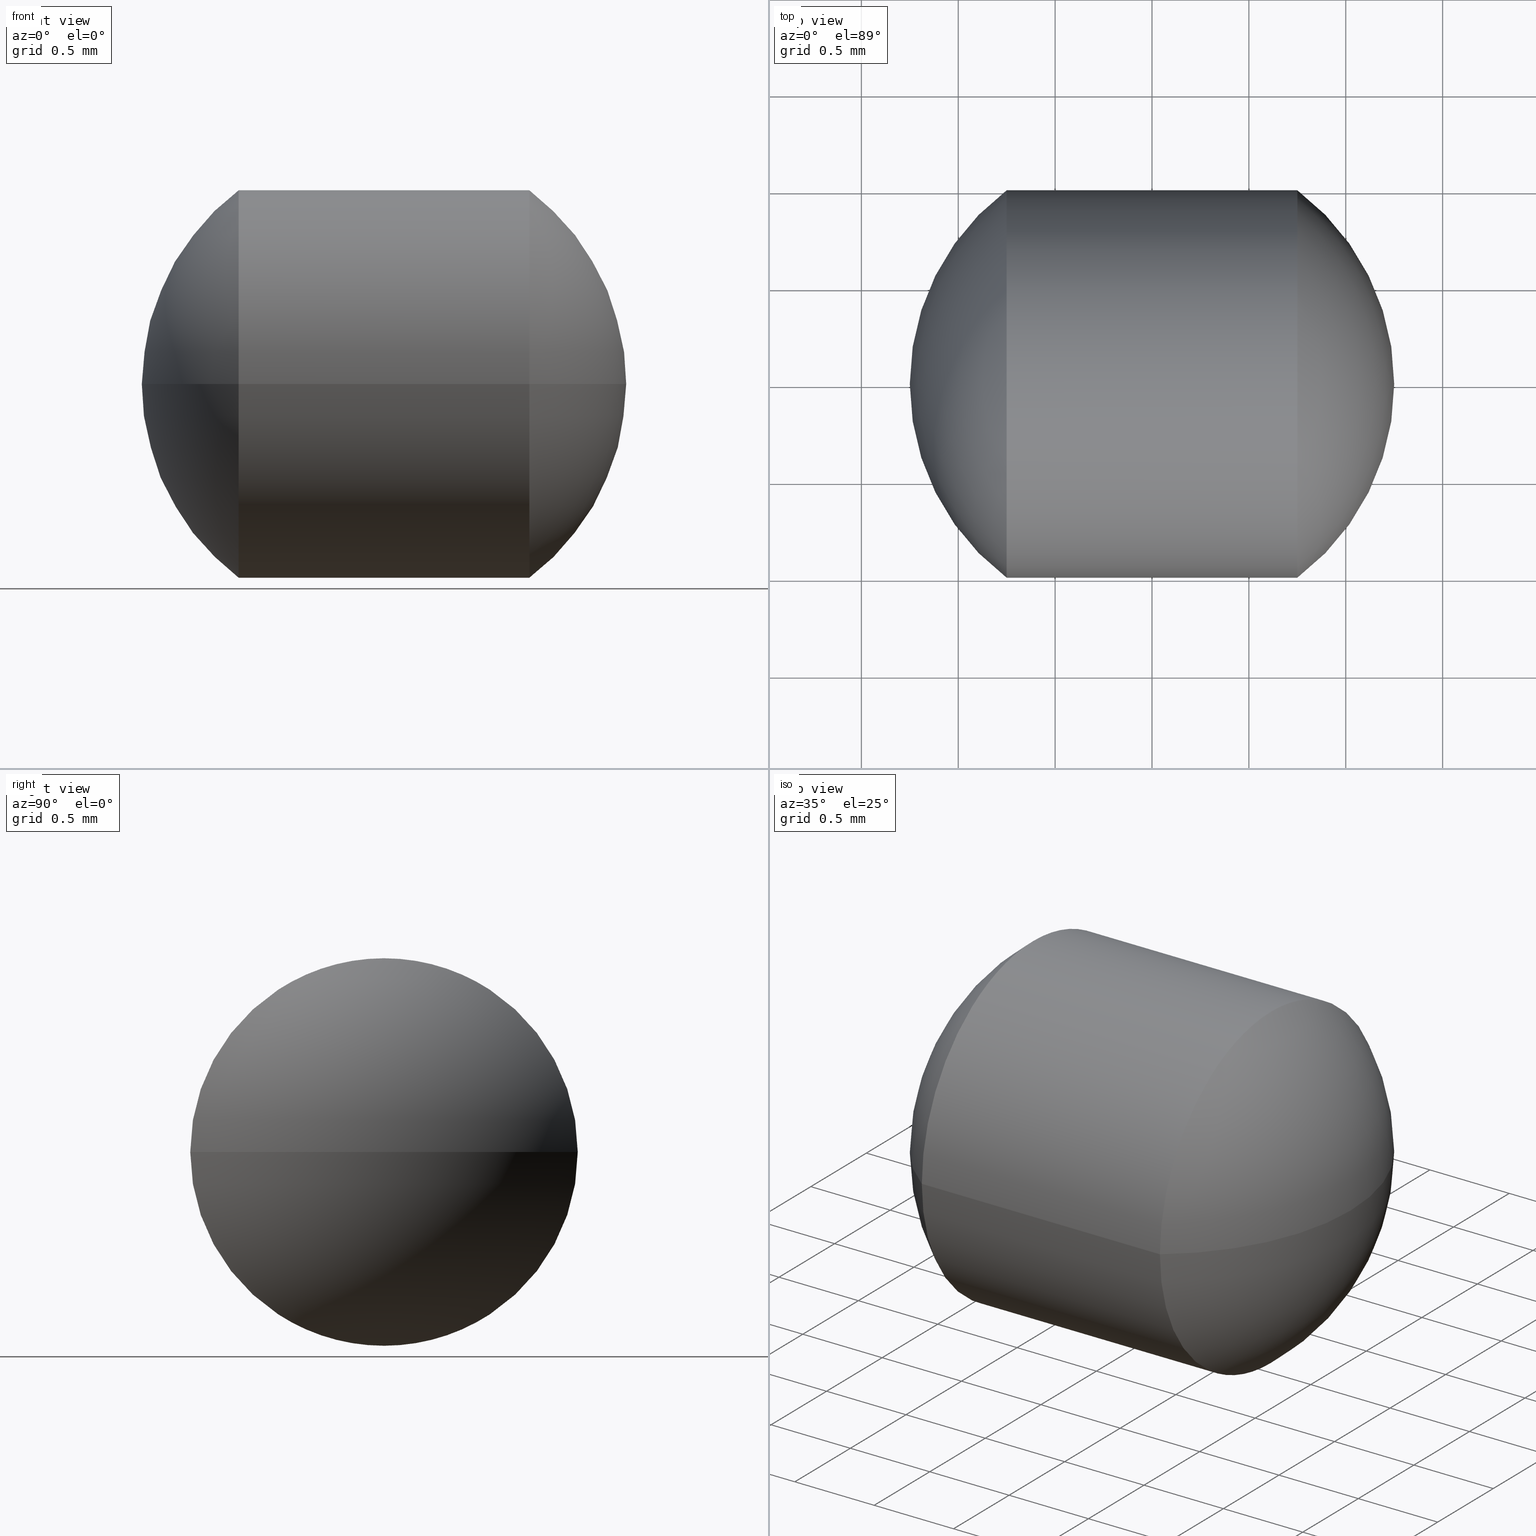
[diagram: canonical four-view strip — front | top / right | iso, engineering-drawing reading convention]
A machine part, canonical four-view strip (front | top / right | iso — engineering-drawing reading convention). The complete STEP part file that produces these views, byte-faithful:
ISO-10303-21;
HEADER;
FILE_DESCRIPTION (( 'STEP AP203' ),
    '1' );
FILE_NAME ('165000����.STEP',
    '2019-06-03T08:49:24',
    ( '' ),
    ( '' ),
    'SwSTEP 2.0',
    'SolidWorks 2016',
    '' );
FILE_SCHEMA (( 'CONFIG_CONTROL_DESIGN' ));
ENDSEC;

DATA;
#1 = CARTESIAN_POINT ( 'NONE',  ( 0.0000000000000000000, 0.0000000000000000000, 0.0000000000000000000 ) ) ;
#2 = COORDINATED_UNIVERSAL_TIME_OFFSET ( 8, 0, .AHEAD. ) ;
#3 = DIRECTION ( 'NONE',  ( -1.000000000000000000, 4.187626049147712300E-017, -0.0000000000000000000 ) ) ;
#4 = ORIENTED_EDGE ( 'NONE', *, *, #265, .T. ) ;
#5 = AXIS2_PLACEMENT_3D ( 'NONE', #298, #158, #18 ) ;
#6 = CALENDAR_DATE ( 2019, 3, 6 ) ;
#7 = COORDINATED_UNIVERSAL_TIME_OFFSET ( 8, 0, .AHEAD. ) ;
#8 = PRODUCT_DEFINITION_FORMATION_WITH_SPECIFIED_SOURCE ( '�κ�', '', #83, .NOT_KNOWN. ) ;
#9 = PERSON_AND_ORGANIZATION_ROLE ( 'creator' ) ;
#10 = PERSON_AND_ORGANIZATION ( #156, #74 ) ;
#11 = COORDINATED_UNIVERSAL_TIME_OFFSET ( 8, 0, .AHEAD. ) ;
#12 = LINE ( 'NONE', #295, #23 ) ;
#13 = AXIS2_PLACEMENT_3D ( 'NONE', #236, #3, #261 ) ;
#14 = EDGE_LOOP ( 'NONE', ( #224, #167, #170, #268 ) ) ;
#15 = VERTEX_POINT ( 'NONE', #54 ) ;
#16 = DIRECTION ( 'NONE',  ( 4.187626049147712300E-017, 1.000000000000000000, 0.0000000000000000000 ) ) ;
#17 = PRODUCT_DEFINITION ( 'δ֪', '', #8, #211 ) ;
#18 = DIRECTION ( 'NONE',  ( 0.0000000000000000000, -1.000000000000000000, 0.0000000000000000000 ) ) ;
#19 = CYLINDRICAL_SURFACE ( 'NONE', #187, 1.000000000000000000 ) ;
#20 = DIRECTION ( 'NONE',  ( 1.000000000000000000, 0.0000000000000000000, 0.0000000000000000000 ) ) ;
#21 = CARTESIAN_POINT ( 'NONE',  ( -0.7500000000000001100, -0.9999999999999997800, -1.224646799147353000E-016 ) ) ;
#22 = CC_DESIGN_PERSON_AND_ORGANIZATION_ASSIGNMENT ( #115, #152, ( #8 ) ) ;
#23 = VECTOR ( 'NONE', #24, 1000.000000000000000 ) ;
#24 = DIRECTION ( 'NONE',  ( -1.000000000000000000, 4.187626049147712300E-017, -0.0000000000000000000 ) ) ;
#25 = APPROVAL_PERSON_ORGANIZATION ( #299, #71, #120 ) ;
#26 = EDGE_CURVE ( 'NONE', #296, #290, #121, .T. ) ;
#27 = APPLICATION_CONTEXT ( 'configuration controlled 3d designs of mechanical parts and assemblies' ) ;
#28 = AXIS2_PLACEMENT_3D ( 'NONE', #272, #128, #196 ) ;
#29 = APPROVAL_PERSON_ORGANIZATION ( #245, #143, #35 ) ;
#30 = SECURITY_CLASSIFICATION ( '', '', #85 ) ;
#31 = CARTESIAN_POINT ( 'NONE',  ( 0.0000000000000000000, 0.0000000000000000000, 0.0000000000000000000 ) ) ;
#32 = DATE_AND_TIME ( #287, #90 ) ;
#33 = CARTESIAN_POINT ( 'NONE',  ( 0.0000000000000000000, 0.0000000000000000000, 0.0000000000000000000 ) ) ;
#34 = CALENDAR_DATE ( 2019, 3, 6 ) ;
#35 = APPROVAL_ROLE ( '' ) ;
#36 = CARTESIAN_POINT ( 'NONE',  ( 0.7500000000000002200, -1.000000000000000200, 0.0000000000000000000 ) ) ;
#37 = AXIS2_PLACEMENT_3D ( 'NONE', #157, #140, #179 ) ;
#38 = CARTESIAN_POINT ( 'NONE',  ( 0.0000000000000000000, 0.0000000000000000000, 0.0000000000000000000 ) ) ;
#39 = CARTESIAN_POINT ( 'NONE',  ( 0.0000000000000000000, 0.0000000000000000000, 0.0000000000000000000 ) ) ;
#40 = EDGE_LOOP ( 'NONE', ( #231, #110, #208, #114 ) ) ;
#41 = UNCERTAINTY_MEASURE_WITH_UNIT (LENGTH_MEASURE( 1.000000000000000100E-005 ), #107, 'distance_accuracy_value', 'NONE');
#42 = SPHERICAL_SURFACE ( 'NONE', #259, 1.250000000000000000 ) ;
#43 = DATE_AND_TIME ( #237, #176 ) ;
#44 = ORIENTED_EDGE ( 'NONE', *, *, #206, .T. ) ;
#45 = APPROVAL ( #285, 'δָ��' ) ;
#46 = DATE_TIME_ROLE ( 'classification_date' ) ;
#47 = DATE_TIME_ROLE ( 'creation_date' ) ;
#48 = CIRCLE ( 'NONE', #284, 1.000000000000000200 ) ;
#49 = ORIENTED_EDGE ( 'NONE', *, *, #206, .F. ) ;
#50 = PERSON_AND_ORGANIZATION ( #156, #74 ) ;
#51 = CALENDAR_DATE ( 2019, 3, 6 ) ;
#52 = APPROVAL_STATUS ( 'not_yet_approved' ) ;
#53 = PERSON_AND_ORGANIZATION ( #156, #74 ) ;
#54 = CARTESIAN_POINT ( 'NONE',  ( -0.7500000000000001100, 1.000000000000000000, 0.0000000000000000000 ) ) ;
#55 = ORIENTED_EDGE ( 'NONE', *, *, #108, .F. ) ;
#56 = APPLICATION_CONTEXT ( 'configuration controlled 3d designs of mechanical parts and assemblies' ) ;
#57 = LOCAL_TIME ( 16, 49, 24.00000000000000000, #123 ) ;
#58 = APPROVAL_PERSON_ORGANIZATION ( #247, #210, #226 ) ;
#59 = APPROVAL_STATUS ( 'not_yet_approved' ) ;
#60 = APPLICATION_CONTEXT ( 'configuration controlled 3d designs of mechanical parts and assemblies' ) ;
#61 = DIRECTION ( 'NONE',  ( 1.000000000000000000, 0.0000000000000000000, 0.0000000000000000000 ) ) ;
#62 = CC_DESIGN_SECURITY_CLASSIFICATION ( #79, ( #64 ) ) ;
#63 = LOCAL_TIME ( 16, 49, 24.00000000000000000, #250 ) ;
#64 = PRODUCT_DEFINITION_FORMATION_WITH_SPECIFIED_SOURCE ( '�κ�', '', #279, .NOT_KNOWN. ) ;
#65 = DATE_AND_TIME ( #34, #57 ) ;
#66 = PRODUCT_DEFINITION_SHAPE ( 'NONE', 'NONE',  #249 ) ;
#67 = ADVANCED_FACE ( 'NONE', ( #172 ), #42, .T. ) ;
#68 = CALENDAR_DATE ( 2019, 3, 6 ) ;
#69 = DATE_AND_TIME ( #51, #194 ) ;
#70 = FACE_OUTER_BOUND ( 'NONE', #98, .T. ) ;
#71 = APPROVAL ( #269, 'δָ��' ) ;
#72 = PERSON_AND_ORGANIZATION ( #156, #74 ) ;
#73 = APPLICATION_PROTOCOL_DEFINITION ( 'international standard', 'config_control_design', 1994, #27 ) ;
#74 = ORGANIZATION ( 'δָ��', 'δָ��', '' ) ;
#75 = DIRECTION ( 'NONE',  ( 5.128362837114822700E-033, 1.224646799147353200E-016, -1.000000000000000000 ) ) ;
#76 = SPHERICAL_SURFACE ( 'NONE', #192, 1.250000000000000000 ) ;
#77 = APPROVAL_DATE_TIME ( #97, #191 ) ;
#78 = CC_DESIGN_PERSON_AND_ORGANIZATION_ASSIGNMENT ( #233, #228, ( #83 ) ) ;
#79 = SECURITY_CLASSIFICATION ( '', '', #96 ) ;
#80 = APPLICATION_CONTEXT ( 'configuration controlled 3d designs of mechanical parts and assemblies' ) ;
#81 = APPROVAL_DATE_TIME ( #65, #45 ) ;
#82 = APPLICATION_PROTOCOL_DEFINITION ( 'international standard', 'config_control_design', 1994, #80 ) ;
#83 = PRODUCT ( '165000����', '165000����', '', ( #199 ) ) ;
#84 = DIRECTION ( 'NONE',  ( 0.0000000000000000000, 0.0000000000000000000, 1.000000000000000000 ) ) ;
#85 = SECURITY_CLASSIFICATION_LEVEL ( 'unclassified' ) ;
#86 = APPROVAL_DATE_TIME ( #209, #143 ) ;
#87 = CC_DESIGN_PERSON_AND_ORGANIZATION_ASSIGNMENT ( #50, #180, ( #30 ) ) ;
#88 = CARTESIAN_POINT ( 'NONE',  ( -0.7500000000000001100, 1.160500205169223100E-016, 0.0000000000000000000 ) ) ;
#89 = CARTESIAN_POINT ( 'NONE',  ( -1.250000000000000000, 1.288857505610559800E-016, 0.0000000000000000000 ) ) ;
#90 = LOCAL_TIME ( 16, 49, 24.00000000000000000, #2 ) ;
#91 = EDGE_CURVE ( 'NONE', #15, #198, #48, .T. ) ;
#92 = CALENDAR_DATE ( 2019, 3, 6 ) ;
#93 = ORIENTED_EDGE ( 'NONE', *, *, #225, .F. ) ;
#94 = CC_DESIGN_DATE_AND_TIME_ASSIGNMENT ( #69, #276, ( #17 ) ) ;
#95 = PERSON_AND_ORGANIZATION_ROLE ( 'creator' ) ;
#96 = SECURITY_CLASSIFICATION_LEVEL ( 'unclassified' ) ;
#97 = DATE_AND_TIME ( #189, #63 ) ;
#98 = EDGE_LOOP ( 'NONE', ( #243, #103, #49 ) ) ;
#99 = CARTESIAN_POINT ( 'NONE',  ( 0.0000000000000000000, 0.0000000000000000000, 0.0000000000000000000 ) ) ;
#100 = PERSON_AND_ORGANIZATION ( #156, #74 ) ;
#101 = CC_DESIGN_DATE_AND_TIME_ASSIGNMENT ( #291, #147, ( #30 ) ) ;
#102 = CARTESIAN_POINT ( 'NONE',  ( 0.0000000000000000000, 0.0000000000000000000, 0.0000000000000000000 ) ) ;
#103 = ORIENTED_EDGE ( 'NONE', *, *, #225, .T. ) ;
#104 = PERSON_AND_ORGANIZATION_ROLE ( 'creator' ) ;
#105 = AXIS2_PLACEMENT_3D ( 'NONE', #214, #75, #292 ) ;
#106 = LOCAL_TIME ( 16, 49, 24.00000000000000000, #235 ) ;
#107 =( LENGTH_UNIT ( ) NAMED_UNIT ( * ) SI_UNIT ( .MILLI., .METRE. ) );
#108 = EDGE_CURVE ( 'NONE', #296, #149, #163, .T. ) ;
#109 = CARTESIAN_POINT ( 'NONE',  ( 1.250000000000000000, -1.288857505610559800E-016, 0.0000000000000000000 ) ) ;
#110 = ORIENTED_EDGE ( 'NONE', *, *, #201, .T. ) ;
#111 = AXIS2_PLACEMENT_3D ( 'NONE', #39, #136, #20 ) ;
#112 = CC_DESIGN_DATE_AND_TIME_ASSIGNMENT ( #252, #47, ( #249 ) ) ;
#113 = PERSON_AND_ORGANIZATION ( #156, #74 ) ;
#114 = ORIENTED_EDGE ( 'NONE', *, *, #154, .F. ) ;
#115 = PERSON_AND_ORGANIZATION ( #156, #74 ) ;
#116 = APPROVAL_PERSON_ORGANIZATION ( #254, #215, #304 ) ;
#117 = CC_DESIGN_PERSON_AND_ORGANIZATION_ASSIGNMENT ( #174, #239, ( #279 ) ) ;
#118 = PRODUCT_DEFINITION_SHAPE ( 'NONE', 'NONE',  #17 ) ;
#119 = APPROVAL_PERSON_ORGANIZATION ( #72, #191, #166 ) ;
#120 = APPROVAL_ROLE ( '' ) ;
#121 = CIRCLE ( 'NONE', #238, 1.250000000000000000 ) ;
#122 = VERTEX_POINT ( 'NONE', #89 ) ;
#123 = COORDINATED_UNIVERSAL_TIME_OFFSET ( 8, 0, .AHEAD. ) ;
#124 =( GEOMETRIC_REPRESENTATION_CONTEXT ( 3 ) GLOBAL_UNCERTAINTY_ASSIGNED_CONTEXT ( ( #41 ) ) GLOBAL_UNIT_ASSIGNED_CONTEXT ( ( #107, #256, #258 ) ) REPRESENTATION_CONTEXT ( 'NONE', 'WORKASPACE' ) );
#125 = APPROVAL_DATE_TIME ( #301, #215 ) ;
#126 = DIRECTION ( 'NONE',  ( 0.0000000000000000000, -1.000000000000000000, 0.0000000000000000000 ) ) ;
#127 = SPHERICAL_SURFACE ( 'NONE', #37, 1.250000000000000000 ) ;
#128 = DIRECTION ( 'NONE',  ( -1.000000000000000000, 4.187626049147712300E-017, -0.0000000000000000000 ) ) ;
#129 = CC_DESIGN_DATE_AND_TIME_ASSIGNMENT ( #32, #46, ( #79 ) ) ;
#130 = DIRECTION ( 'NONE',  ( 0.0000000000000000000, -0.0000000000000000000, -1.000000000000000000 ) ) ;
#131 = ORIENTED_EDGE ( 'NONE', *, *, #142, .F. ) ;
#132 = PERSON_AND_ORGANIZATION ( #156, #74 ) ;
#133 = ADVANCED_BREP_SHAPE_REPRESENTATION ( '165000����', ( #244, #220 ), #124 ) ;
#134 = CARTESIAN_POINT ( 'NONE',  ( 0.7500000000000002200, 1.000000000000000200, 1.224646799147353500E-016 ) ) ;
#135 = COORDINATED_UNIVERSAL_TIME_OFFSET ( 8, 0, .AHEAD. ) ;
#136 = DIRECTION ( 'NONE',  ( 0.0000000000000000000, 0.0000000000000000000, 1.000000000000000000 ) ) ;
#137 = CIRCLE ( 'NONE', #28, 1.000000000000000200 ) ;
#138 = CARTESIAN_POINT ( 'NONE',  ( -1.619607495069033800, 1.000000000000000200, 1.224646799147353200E-016 ) ) ;
#139 = CC_DESIGN_APPROVAL ( #215, ( #17 ) ) ;
#140 = DIRECTION ( 'NONE',  ( 0.0000000000000000000, 0.0000000000000000000, 1.000000000000000000 ) ) ;
#141 = VECTOR ( 'NONE', #303, 1000.000000000000000 ) ;
#142 = EDGE_CURVE ( 'NONE', #290, #149, #242, .T. ) ;
#143 = APPROVAL ( #52, 'δָ��' ) ;
#144 = APPROVAL_ROLE ( '' ) ;
#145 = APPROVAL_STATUS ( 'not_yet_approved' ) ;
#146 = FACE_OUTER_BOUND ( 'NONE', #159, .T. ) ;
#147 = DATE_TIME_ROLE ( 'classification_date' ) ;
#148 = CC_DESIGN_APPROVAL ( #143, ( #30 ) ) ;
#149 = VERTEX_POINT ( 'NONE', #134 ) ;
#150 = PERSON_AND_ORGANIZATION ( #156, #74 ) ;
#151 = DIRECTION ( 'NONE',  ( -5.128362837114822700E-033, -1.224646799147353200E-016, 1.000000000000000000 ) ) ;
#152 = PERSON_AND_ORGANIZATION_ROLE ( 'design_supplier' ) ;
#153 = APPLICATION_PROTOCOL_DEFINITION ( 'international standard', 'config_control_design', 1994, #56 ) ;
#154 = EDGE_CURVE ( 'NONE', #290, #198, #12, .T. ) ;
#155 = LOCAL_TIME ( 16, 49, 24.00000000000000000, #216 ) ;
#156 = PERSON ( 'δָ��', 'δָ��', 'δָ��', ('δָ��'), ('δָ��'), ('δָ��') ) ;
#157 = CARTESIAN_POINT ( 'NONE',  ( 0.0000000000000000000, 0.0000000000000000000, 0.0000000000000000000 ) ) ;
#158 = DIRECTION ( 'NONE',  ( -1.000000000000000000, 4.187626049147712300E-017, -0.0000000000000000000 ) ) ;
#159 = EDGE_LOOP ( 'NONE', ( #55, #219, #173 ) ) ;
#160 = DESIGN_CONTEXT ( 'detailed design', #27, 'design' ) ;
#161 = CC_DESIGN_SECURITY_CLASSIFICATION ( #30, ( #8 ) ) ;
#162 = ADVANCED_FACE ( 'NONE', ( #146 ), #127, .T. ) ;
#163 = CIRCLE ( 'NONE', #305, 1.250000000000000000 ) ;
#164 = LOCAL_TIME ( 16, 49, 24.00000000000000000, #227 ) ;
#165 = PRODUCT_RELATED_PRODUCT_CATEGORY ( 'detail', '', ( #83 ) ) ;
#166 = APPROVAL_ROLE ( '' ) ;
#167 = ORIENTED_EDGE ( 'NONE', *, *, #218, .T. ) ;
#168 = CALENDAR_DATE ( 2019, 3, 6 ) ;
#169 = CALENDAR_DATE ( 2019, 3, 6 ) ;
#170 = ORIENTED_EDGE ( 'NONE', *, *, #154, .T. ) ;
#171 = CC_DESIGN_PERSON_AND_ORGANIZATION_ASSIGNMENT ( #113, #288, ( #79 ) ) ;
#172 = FACE_OUTER_BOUND ( 'NONE', #286, .T. ) ;
#173 = ORIENTED_EDGE ( 'NONE', *, *, #218, .F. ) ;
#174 = PERSON_AND_ORGANIZATION ( #156, #74 ) ;
#175 = DIRECTION ( 'NONE',  ( 0.0000000000000000000, 0.0000000000000000000, 1.000000000000000000 ) ) ;
#176 = LOCAL_TIME ( 16, 49, 24.00000000000000000, #11 ) ;
#177 = DIRECTION ( 'NONE',  ( 0.0000000000000000000, -1.000000000000000000, -1.224646799147353200E-016 ) ) ;
#178 = DIRECTION ( 'NONE',  ( -1.000000000000000000, 4.187626049147712300E-017, -0.0000000000000000000 ) ) ;
#179 = DIRECTION ( 'NONE',  ( -4.187626049147712300E-017, -1.000000000000000000, 0.0000000000000000000 ) ) ;
#180 = PERSON_AND_ORGANIZATION_ROLE ( 'classification_officer' ) ;
#181 = CC_DESIGN_PERSON_AND_ORGANIZATION_ASSIGNMENT ( #264, #104, ( #17 ) ) ;
#182 = ORIENTED_EDGE ( 'NONE', *, *, #108, .T. ) ;
#183 = CIRCLE ( 'NONE', #289, 1.000000000000000200 ) ;
#184 = ADVANCED_FACE ( 'NONE', ( #270 ), #200, .T. ) ;
#185 = APPROVAL_PERSON_ORGANIZATION ( #100, #45, #144 ) ;
#186 = LOCAL_TIME ( 16, 49, 24.00000000000000000, #7 ) ;
#187 = AXIS2_PLACEMENT_3D ( 'NONE', #271, #217, #126 ) ;
#188 = FACE_OUTER_BOUND ( 'NONE', #14, .T. ) ;
#189 = CALENDAR_DATE ( 2019, 3, 6 ) ;
#190 = CC_DESIGN_APPROVAL ( #191, ( #79 ) ) ;
#191 = APPROVAL ( #145, 'δָ��' ) ;
#192 = AXIS2_PLACEMENT_3D ( 'NONE', #1, #280, #202 ) ;
#193 = APPROVAL_DATE_TIME ( #273, #71 ) ;
#194 = LOCAL_TIME ( 16, 49, 24.00000000000000000, #135 ) ;
#195 = LINE ( 'NONE', #138, #141 ) ;
#196 = DIRECTION ( 'NONE',  ( 0.0000000000000000000, -1.000000000000000000, 0.0000000000000000000 ) ) ;
#197 = MECHANICAL_CONTEXT ( 'NONE', #60, 'mechanical' ) ;
#198 = VERTEX_POINT ( 'NONE', #21 ) ;
#199 = MECHANICAL_CONTEXT ( 'NONE', #80, 'mechanical' ) ;
#200 = SPHERICAL_SURFACE ( 'NONE', #223, 1.250000000000000000 ) ;
#201 = EDGE_CURVE ( 'NONE', #149, #15, #195, .T. ) ;
#202 = DIRECTION ( 'NONE',  ( 4.187626049147712300E-017, 1.000000000000000000, 0.0000000000000000000 ) ) ;
#203 = DIRECTION ( 'NONE',  ( 0.0000000000000000000, -1.000000000000000000, 0.0000000000000000000 ) ) ;
#204 = CC_DESIGN_PERSON_AND_ORGANIZATION_ASSIGNMENT ( #150, #9, ( #64 ) ) ;
#205 = ADVANCED_FACE ( 'NONE', ( #70 ), #76, .T. ) ;
#206 = EDGE_CURVE ( 'NONE', #15, #122, #266, .T. ) ;
#207 = FACE_OUTER_BOUND ( 'NONE', #40, .T. ) ;
#208 = ORIENTED_EDGE ( 'NONE', *, *, #265, .F. ) ;
#209 = DATE_AND_TIME ( #6, #278 ) ;
#210 = APPROVAL ( #59, 'δָ��' ) ;
#211 = DESIGN_CONTEXT ( 'detailed design', #56, 'design' ) ;
#212 = EDGE_LOOP ( 'NONE', ( #293, #182, #131 ) ) ;
#213 = PERSON_AND_ORGANIZATION_ROLE ( 'design_supplier' ) ;
#214 = CARTESIAN_POINT ( 'NONE',  ( 0.0000000000000000000, 0.0000000000000000000, 0.0000000000000000000 ) ) ;
#215 = APPROVAL ( #253, 'δָ��' ) ;
#216 = COORDINATED_UNIVERSAL_TIME_OFFSET ( 8, 0, .AHEAD. ) ;
#217 = DIRECTION ( 'NONE',  ( -1.000000000000000000, 4.187626049147712300E-017, -0.0000000000000000000 ) ) ;
#218 = EDGE_CURVE ( 'NONE', #149, #290, #137, .T. ) ;
#219 = ORIENTED_EDGE ( 'NONE', *, *, #26, .T. ) ;
#220 = AXIS2_PLACEMENT_3D ( 'NONE', #33, #175, #61 ) ;
#221 = CC_DESIGN_PERSON_AND_ORGANIZATION_ASSIGNMENT ( #132, #95, ( #249 ) ) ;
#222 = DIRECTION ( 'NONE',  ( 0.0000000000000000000, 0.0000000000000000000, -1.000000000000000000 ) ) ;
#223 = AXIS2_PLACEMENT_3D ( 'NONE', #38, #84, #229 ) ;
#224 = ORIENTED_EDGE ( 'NONE', *, *, #201, .F. ) ;
#225 = EDGE_CURVE ( 'NONE', #198, #122, #257, .T. ) ;
#226 = APPROVAL_ROLE ( '' ) ;
#227 = COORDINATED_UNIVERSAL_TIME_OFFSET ( 8, 0, .AHEAD. ) ;
#228 = PERSON_AND_ORGANIZATION_ROLE ( 'design_owner' ) ;
#229 = DIRECTION ( 'NONE',  ( -4.187626049147712300E-017, -1.000000000000000000, 0.0000000000000000000 ) ) ;
#230 = CC_DESIGN_PERSON_AND_ORGANIZATION_ASSIGNMENT ( #10, #302, ( #8 ) ) ;
#231 = ORIENTED_EDGE ( 'NONE', *, *, #142, .T. ) ;
#232 = ADVANCED_FACE ( 'NONE', ( #207 ), #19, .T. ) ;
#233 = PERSON_AND_ORGANIZATION ( #156, #74 ) ;
#234 = CLOSED_SHELL ( 'NONE', ( #184, #232, #205, #67, #282, #162 ) ) ;
#235 = COORDINATED_UNIVERSAL_TIME_OFFSET ( 8, 0, .AHEAD. ) ;
#236 = CARTESIAN_POINT ( 'NONE',  ( 0.7500000000000002200, 5.323562977970660000E-017, 0.0000000000000000000 ) ) ;
#237 = CALENDAR_DATE ( 2019, 3, 6 ) ;
#238 = AXIS2_PLACEMENT_3D ( 'NONE', #102, #130, #274 ) ;
#239 = PERSON_AND_ORGANIZATION_ROLE ( 'design_owner' ) ;
#240 = SHAPE_DEFINITION_REPRESENTATION ( #66, #133 ) ;
#241 = CC_DESIGN_APPROVAL ( #45, ( #64 ) ) ;
#242 = CIRCLE ( 'NONE', #13, 1.000000000000000200 ) ;
#243 = ORIENTED_EDGE ( 'NONE', *, *, #91, .T. ) ;
#244 = MANIFOLD_SOLID_BREP ( '��ת1', #234 ) ;
#245 = PERSON_AND_ORGANIZATION ( #156, #74 ) ;
#246 = DIRECTION ( 'NONE',  ( 1.000000000000000000, 0.0000000000000000000, 0.0000000000000000000 ) ) ;
#247 = PERSON_AND_ORGANIZATION ( #156, #74 ) ;
#248 = DIRECTION ( 'NONE',  ( 0.0000000000000000000, 0.0000000000000000000, 1.000000000000000000 ) ) ;
#249 = PRODUCT_DEFINITION ( 'δ֪', '', #64, #160 ) ;
#250 = COORDINATED_UNIVERSAL_TIME_OFFSET ( 8, 0, .AHEAD. ) ;
#251 = CYLINDRICAL_SURFACE ( 'NONE', #5, 1.000000000000000000 ) ;
#252 = DATE_AND_TIME ( #68, #164 ) ;
#253 = APPROVAL_STATUS ( 'not_yet_approved' ) ;
#254 = PERSON_AND_ORGANIZATION ( #156, #74 ) ;
#255 = CARTESIAN_POINT ( 'NONE',  ( -0.7500000000000001100, 1.160500205169223100E-016, 0.0000000000000000000 ) ) ;
#256 =( NAMED_UNIT ( * ) PLANE_ANGLE_UNIT ( ) SI_UNIT ( $, .RADIAN. ) );
#257 = CIRCLE ( 'NONE', #105, 1.250000000000000000 ) ;
#258 =( NAMED_UNIT ( * ) SI_UNIT ( $, .STERADIAN. ) SOLID_ANGLE_UNIT ( ) );
#259 = AXIS2_PLACEMENT_3D ( 'NONE', #31, #222, #16 ) ;
#260 = APPLICATION_PROTOCOL_DEFINITION ( 'international standard', 'config_control_design', 1994, #60 ) ;
#261 = DIRECTION ( 'NONE',  ( 0.0000000000000000000, -1.000000000000000000, 0.0000000000000000000 ) ) ;
#262 = PRODUCT_RELATED_PRODUCT_CATEGORY ( 'detail', '', ( #279 ) ) ;
#263 = COORDINATED_UNIVERSAL_TIME_OFFSET ( 8, 0, .AHEAD. ) ;
#264 = PERSON_AND_ORGANIZATION ( #156, #74 ) ;
#265 = EDGE_CURVE ( 'NONE', #198, #15, #183, .T. ) ;
#266 = CIRCLE ( 'NONE', #275, 1.250000000000000000 ) ;
#267 = CC_DESIGN_APPROVAL ( #71, ( #249 ) ) ;
#268 = ORIENTED_EDGE ( 'NONE', *, *, #91, .F. ) ;
#269 = APPROVAL_STATUS ( 'not_yet_approved' ) ;
#270 = FACE_OUTER_BOUND ( 'NONE', #212, .T. ) ;
#271 = CARTESIAN_POINT ( 'NONE',  ( -1.619607495069033800, 1.524659305057740600E-016, 0.0000000000000000000 ) ) ;
#272 = CARTESIAN_POINT ( 'NONE',  ( 0.7500000000000002200, 5.323562977970660000E-017, 0.0000000000000000000 ) ) ;
#273 = DATE_AND_TIME ( #168, #106 ) ;
#274 = DIRECTION ( 'NONE',  ( -1.000000000000000000, 0.0000000000000000000, 0.0000000000000000000 ) ) ;
#275 = AXIS2_PLACEMENT_3D ( 'NONE', #99, #248, #246 ) ;
#276 = DATE_TIME_ROLE ( 'creation_date' ) ;
#277 = DIRECTION ( 'NONE',  ( -1.000000000000000000, 4.187626049147712300E-017, -0.0000000000000000000 ) ) ;
#278 = LOCAL_TIME ( 16, 49, 24.00000000000000000, #263 ) ;
#279 = PRODUCT ( '165000����', '165000����', '', ( #197 ) ) ;
#280 = DIRECTION ( 'NONE',  ( 0.0000000000000000000, 0.0000000000000000000, -1.000000000000000000 ) ) ;
#281 = CC_DESIGN_PERSON_AND_ORGANIZATION_ASSIGNMENT ( #53, #213, ( #64 ) ) ;
#282 = ADVANCED_FACE ( 'NONE', ( #188 ), #251, .T. ) ;
#283 = APPROVAL_DATE_TIME ( #43, #210 ) ;
#284 = AXIS2_PLACEMENT_3D ( 'NONE', #255, #277, #300 ) ;
#285 = APPROVAL_STATUS ( 'not_yet_approved' ) ;
#286 = EDGE_LOOP ( 'NONE', ( #93, #4, #44 ) ) ;
#287 = CALENDAR_DATE ( 2019, 3, 6 ) ;
#288 = PERSON_AND_ORGANIZATION_ROLE ( 'classification_officer' ) ;
#289 = AXIS2_PLACEMENT_3D ( 'NONE', #88, #178, #203 ) ;
#290 = VERTEX_POINT ( 'NONE', #36 ) ;
#291 = DATE_AND_TIME ( #92, #155 ) ;
#292 = DIRECTION ( 'NONE',  ( 0.0000000000000000000, 1.000000000000000000, 1.224646799147353200E-016 ) ) ;
#293 = ORIENTED_EDGE ( 'NONE', *, *, #26, .F. ) ;
#294 = CC_DESIGN_APPROVAL ( #210, ( #8 ) ) ;
#295 = CARTESIAN_POINT ( 'NONE',  ( -1.619607495069033800, -0.9999999999999997800, 0.0000000000000000000 ) ) ;
#296 = VERTEX_POINT ( 'NONE', #109 ) ;
#297 = CARTESIAN_POINT ( 'NONE',  ( 0.0000000000000000000, 0.0000000000000000000, 0.0000000000000000000 ) ) ;
#298 = CARTESIAN_POINT ( 'NONE',  ( -1.619607495069033800, 1.524659305057740600E-016, 0.0000000000000000000 ) ) ;
#299 = PERSON_AND_ORGANIZATION ( #156, #74 ) ;
#300 = DIRECTION ( 'NONE',  ( 0.0000000000000000000, -1.000000000000000000, 0.0000000000000000000 ) ) ;
#301 = DATE_AND_TIME ( #169, #186 ) ;
#302 = PERSON_AND_ORGANIZATION_ROLE ( 'creator' ) ;
#303 = DIRECTION ( 'NONE',  ( -1.000000000000000000, 4.187626049147712300E-017, -0.0000000000000000000 ) ) ;
#304 = APPROVAL_ROLE ( '' ) ;
#305 = AXIS2_PLACEMENT_3D ( 'NONE', #297, #151, #177 ) ;
ENDSEC;
END-ISO-10303-21;
